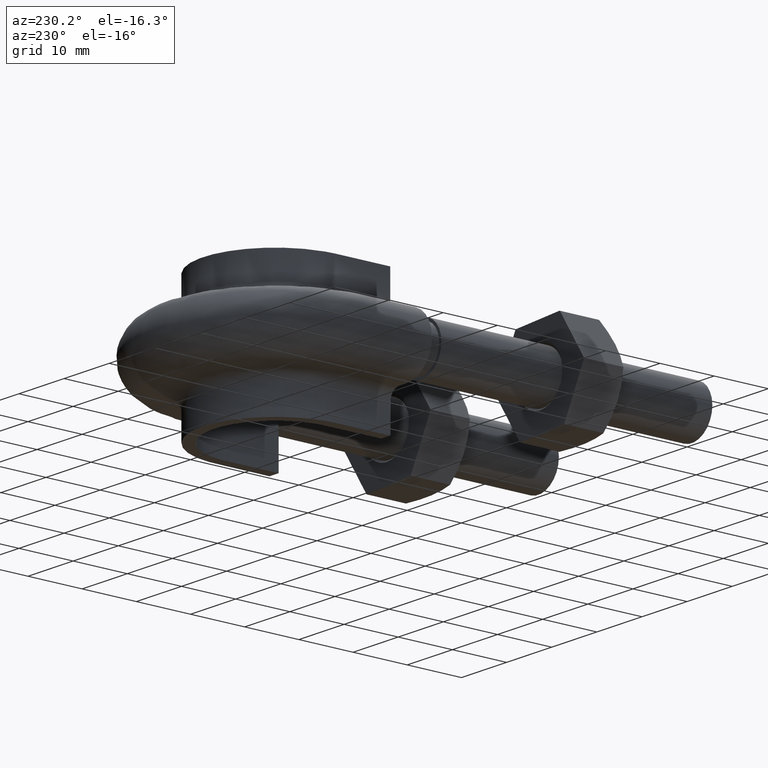
[diagram: clean part render]
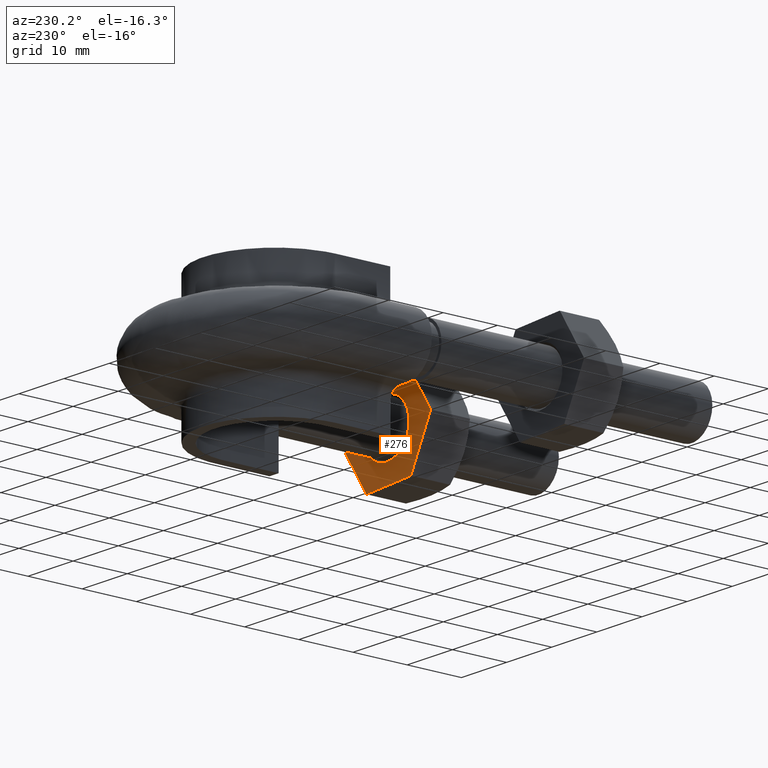
[diagram: same view with one face highlighted and labeled with its STEP entity id]
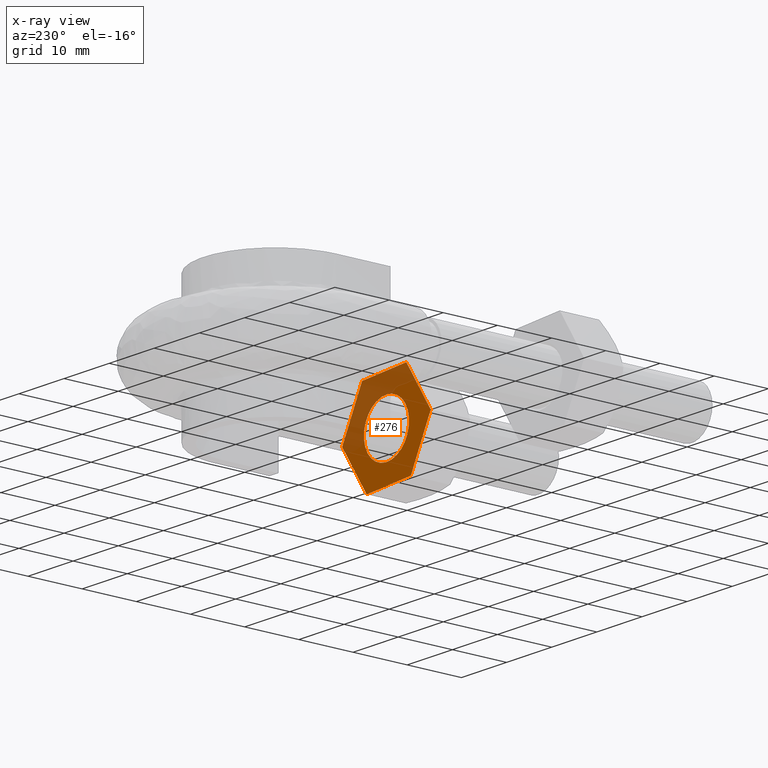
[diagram: x-ray of the same camera — body ghosted, the highlighted face saturated]
A machine part, auxiliary view. The second image highlights one B-rep face of the part: STEP entity #276.
The next image is the same camera in x-ray: the body ghosted, the highlighted face saturated — about 39% of this face is hidden behind the body in this view.
In plain terms, the highlighted planar face has unit normal (-0, -1, 0).
Its self-contained STEP definition (entity closure, byte-faithful):
#276 = ADVANCED_FACE( '', ( #426, #427 ), #428, .F. );
#426 = FACE_BOUND( '', #1505, .T. );
#427 = FACE_OUTER_BOUND( '', #1506, .T. );
#428 = PLANE( '', #1507 );
#1505 = EDGE_LOOP( '', ( #1946 ) );
#1506 = EDGE_LOOP( '', ( #1947, #1948, #1949, #1950, #1951, #1952, #1953, #1954, #1955, #1956, #1957, #1958 ) );
#1507 = AXIS2_PLACEMENT_3D( '', #1959, #1960, #1961 );
#1946 = ORIENTED_EDGE( '', *, *, #2203, .F. );
#1947 = ORIENTED_EDGE( '', *, *, #2204, .T. );
#1948 = ORIENTED_EDGE( '', *, *, #2205, .T. );
#1949 = ORIENTED_EDGE( '', *, *, #2206, .T. );
#1950 = ORIENTED_EDGE( '', *, *, #2199, .T. );
#1951 = ORIENTED_EDGE( '', *, *, #2207, .T. );
#1952 = ORIENTED_EDGE( '', *, *, #2208, .T. );
#1953 = ORIENTED_EDGE( '', *, *, #2209, .T. );
#1954 = ORIENTED_EDGE( '', *, *, #2210, .T. );
#1955 = ORIENTED_EDGE( '', *, *, #2211, .T. );
#1956 = ORIENTED_EDGE( '', *, *, #2212, .T. );
#1957 = ORIENTED_EDGE( '', *, *, #2213, .T. );
#1958 = ORIENTED_EDGE( '', *, *, #2214, .T. );
#1959 = CARTESIAN_POINT( '', ( 22.3863076776427, 28.0000000000045, 8.18704400878405 ) );
#1960 = DIRECTION( '', ( -2.44921270764557E-016, -1.00000000000000, 3.06151588455535E-016 ) );
#1961 = DIRECTION( '', ( 0.835412653957557, -3.72878354475236E-016, -0.549623232412523 ) );
#2199 = EDGE_CURVE( '', #2426, #2424, #2427, .T. );
#2203 = EDGE_CURVE( '', #2432, #2432, #2433, .T. );
#2204 = EDGE_CURVE( '', #2434, #2435, #2436, .T. );
#2205 = EDGE_CURVE( '', #2435, #2437, #2438, .T. );
#2206 = EDGE_CURVE( '', #2437, #2426, #2439, .T. );
#2207 = EDGE_CURVE( '', #2424, #2440, #2441, .T. );
#2208 = EDGE_CURVE( '', #2440, #2442, #2443, .T. );
#2209 = EDGE_CURVE( '', #2442, #2444, #2445, .T. );
#2210 = EDGE_CURVE( '', #2444, #2446, #2447, .T. );
#2211 = EDGE_CURVE( '', #2446, #2448, #2449, .T. );
#2212 = EDGE_CURVE( '', #2448, #2450, #2451, .T. );
#2213 = EDGE_CURVE( '', #2450, #2452, #2453, .T. );
#2214 = EDGE_CURVE( '', #2452, #2434, #2454, .T. );
#2424 = VERTEX_POINT( '', #2975 );
#2426 = VERTEX_POINT( '', #2978 );
#2427 = LINE( '', #2979, #2980 );
#2432 = VERTEX_POINT( '', #2993 );
#2433 = CIRCLE( '', #2994, 5.00000000000000 );
#2434 = VERTEX_POINT( '', #2995 );
#2435 = VERTEX_POINT( '', #2996 );
#2436 = CIRCLE( '', #2997, 9.80000000000000 );
#2437 = VERTEX_POINT( '', #2998 );
#2438 = LINE( '', #2999, #3000 );
#2439 = CIRCLE( '', #3001, 9.80000000000000 );
#2440 = VERTEX_POINT( '', #3002 );
#2441 = CIRCLE( '', #3003, 9.80000000000000 );
#2442 = VERTEX_POINT( '', #3004 );
#2443 = LINE( '', #3005, #3006 );
#2444 = VERTEX_POINT( '', #3007 );
#2445 = CIRCLE( '', #3008, 9.80000000000000 );
#2446 = VERTEX_POINT( '', #3009 );
#2447 = LINE( '', #3010, #3011 );
#2448 = VERTEX_POINT( '', #3012 );
#2449 = CIRCLE( '', #3013, 9.80000000000000 );
#2450 = VERTEX_POINT( '', #3014 );
#2451 = LINE( '', #3015, #3016 );
#2452 = VERTEX_POINT( '', #3017 );
#2453 = CIRCLE( '', #3018, 9.80000000000000 );
#2454 = LINE( '', #3019, #3020 );
#2975 = CARTESIAN_POINT( '', ( 11.6353999120748, 28.0000000000045, -8.20128440530097 ) );
#2978 = CARTESIAN_POINT( '', ( 21.3738170563153, 28.0000000000045, -8.76981894669929 ) );
#2979 = CARTESIAN_POINT( '', ( 21.3962794503598, 28.0000000000045, -8.77113031452300 ) );
#2980 = VECTOR( '', #3284, 1000.00000000000 );
#2993 = CARTESIAN_POINT( '', ( 12.8229367302122, 28.0000000000045, 2.74811616206261 ) );
#2994 = AXIS2_PLACEMENT_3D( '', #3289, #3290, #3291 );
#2995 = CARTESIAN_POINT( '', ( 26.7848206826144, 28.0000000000045, -0.545237754637004 ) );
#2996 = CARTESIAN_POINT( '', ( 26.7817945225893, 28.0000000000045, -0.597072791074953 ) );
#2997 = AXIS2_PLACEMENT_3D( '', #3292, #3293, #3294 );
#2998 = CARTESIAN_POINT( '', ( 21.4202205946892, 28.0000000000045, -8.74652215993796 ) );
#2999 = CARTESIAN_POINT( '', ( 29.4873152362820, 28.0000000000045, 3.51524653327760 ) );
#3000 = VECTOR( '', #3295, 1000.00000000000 );
#3001 = AXIS2_PLACEMENT_3D( '', #3296, #3297, #3298 );
#3002 = CARTESIAN_POINT( '', ( 11.5920225337260, 28.0000000000045, -8.17274615562435 ) );
#3003 = AXIS2_PLACEMENT_3D( '', #3299, #3300, #3301 );
#3004 = CARTESIAN_POINT( '', ( 7.21517931738562, 28.0000000000045, 0.545237754636984 ) );
#3005 = CARTESIAN_POINT( '', ( 7.20508379821239, 28.0000000000045, 0.565346442421218 ) );
#3006 = VECTOR( '', #3302, 1000.00000000000 );
#3007 = CARTESIAN_POINT( '', ( 7.21820547741071, 28.0000000000045, 0.597072791074936 ) );
#3008 = AXIS2_PLACEMENT_3D( '', #3303, #3304, #3305 );
#3009 = CARTESIAN_POINT( '', ( 12.5797794053108, 28.0000000000045, 8.74652215993795 ) );
#3010 = CARTESIAN_POINT( '', ( 15.2853001190035, 28.0000000000045, 12.8588414842905 ) );
#3011 = VECTOR( '', #3306, 1000.00000000000 );
#3012 = CARTESIAN_POINT( '', ( 12.6261829436847, 28.0000000000045, 8.76981894669927 ) );
#3013 = AXIS2_PLACEMENT_3D( '', #3307, #3308, #3309 );
#3014 = CARTESIAN_POINT( '', ( 22.3646000879252, 28.0000000000045, 8.20128440530095 ) );
#3015 = CARTESIAN_POINT( '', ( 22.3870624819698, 28.0000000000045, 8.19997303747724 ) );
#3016 = VECTOR( '', #3310, 1000.00000000000 );
#3017 = CARTESIAN_POINT( '', ( 22.4079774662740, 28.0000000000045, 8.17274615562433 ) );
#3018 = AXIS2_PLACEMENT_3D( '', #3311, #3312, #3313 );
#3019 = CARTESIAN_POINT( '', ( 22.3978819471008, 28.0000000000045, 8.19285484340856 ) );
#3020 = VECTOR( '', #3314, 1000.00000000000 );
#3284 = DIRECTION( '', ( -0.998300197176485, 2.62347882246512E-016, 0.0582813548005854 ) );
#3289 = CARTESIAN_POINT( '', ( 17.0000000000000, 28.0000000000045, -8.71307420744672E-015 ) );
#3290 = DIRECTION( '', ( 2.44921270764557E-016, 1.00000000000000, -3.06151588455535E-016 ) );
#3291 = DIRECTION( '', ( -0.835412653957557, 3.72878354475236E-016, 0.549623232412523 ) );
#3292 = CARTESIAN_POINT( '', ( 17.0000000000000, 28.0000000000045, -8.71307420744672E-015 ) );
#3293 = DIRECTION( '', ( 2.44921270764557E-016, 1.00000000000000, -3.06151588455535E-016 ) );
#3294 = DIRECTION( '', ( -0.835412653957557, 3.72878354475236E-016, 0.549623232412524 ) );
#3295 = DIRECTION( '', ( -0.549623232412523, -1.21148490500762E-016, -0.835412653957557 ) );
#3296 = CARTESIAN_POINT( '', ( 17.0000000000000, 28.0000000000045, -8.71307420744672E-015 ) );
#3297 = DIRECTION( '', ( 2.44921270764557E-016, 1.00000000000000, -3.06151588455535E-016 ) );
#3298 = DIRECTION( '', ( -0.835412653957557, 3.72878354475236E-016, 0.549623232412524 ) );
#3299 = CARTESIAN_POINT( '', ( 17.0000000000000, 28.0000000000045, -8.71307420744672E-015 ) );
#3300 = DIRECTION( '', ( 2.44921270764557E-016, 1.00000000000000, -3.06151588455535E-016 ) );
#3301 = DIRECTION( '', ( -0.835412653957557, 3.72878354475236E-016, 0.549623232412524 ) );
#3302 = DIRECTION( '', ( -0.448676964763961, 3.83496372747274E-016, 0.893694008758143 ) );
#3303 = CARTESIAN_POINT( '', ( 17.0000000000000, 28.0000000000045, -8.71307420744672E-015 ) );
#3304 = DIRECTION( '', ( 2.44921270764557E-016, 1.00000000000000, -3.06151588455535E-016 ) );
#3305 = DIRECTION( '', ( -0.835412653957557, 3.72878354475236E-016, 0.549623232412524 ) );
#3306 = DIRECTION( '', ( 0.549623232412523, 1.21148490500762E-016, 0.835412653957557 ) );
#3307 = CARTESIAN_POINT( '', ( 17.0000000000000, 28.0000000000045, -8.71307420744672E-015 ) );
#3308 = DIRECTION( '', ( 2.44921270764557E-016, 1.00000000000000, -3.06151588455535E-016 ) );
#3309 = DIRECTION( '', ( -0.835412653957557, 3.72878354475236E-016, 0.549623232412524 ) );
#3310 = DIRECTION( '', ( 0.998300197176485, -2.62347882246512E-016, -0.0582813548005854 ) );
#3311 = CARTESIAN_POINT( '', ( 17.0000000000000, 28.0000000000045, -8.71307420744672E-015 ) );
#3312 = DIRECTION( '', ( 2.44921270764557E-016, 1.00000000000000, -3.06151588455535E-016 ) );
#3313 = DIRECTION( '', ( -0.835412653957557, 3.72878354475236E-016, 0.549623232412524 ) );
#3314 = DIRECTION( '', ( 0.448676964763961, -3.83496372747274E-016, -0.893694008758143 ) );